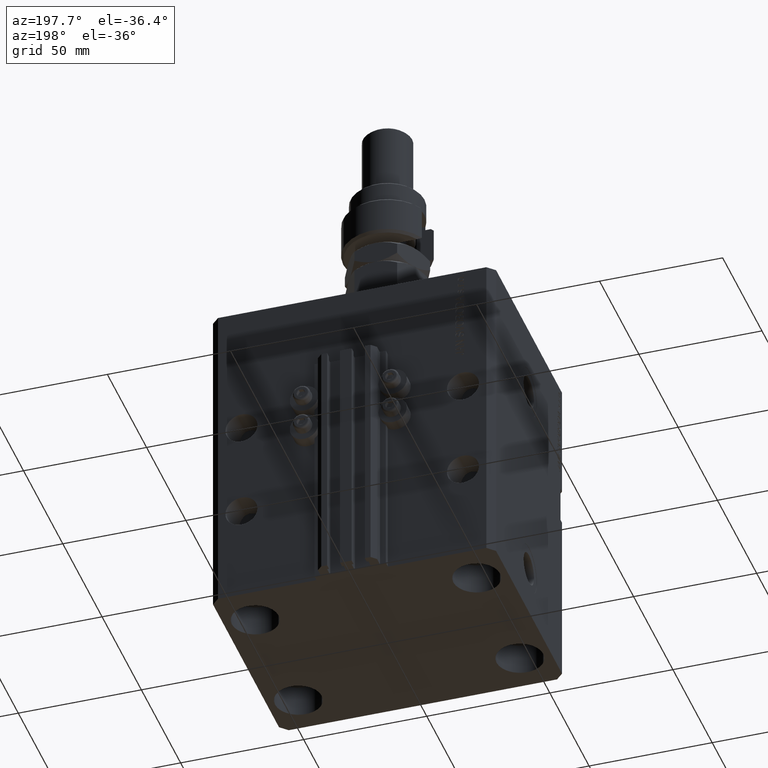
[diagram: clean part render]
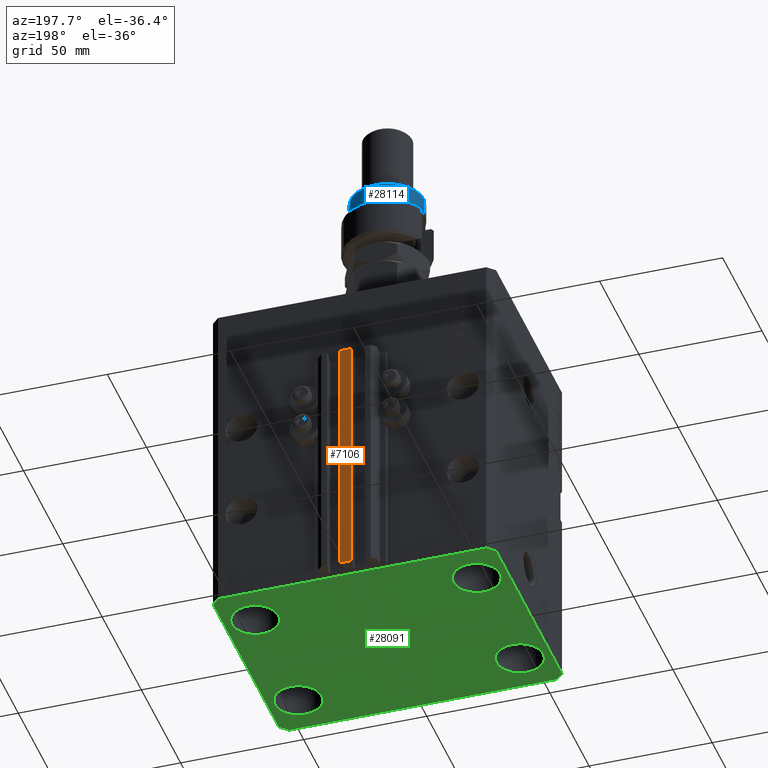
[diagram: same view with three faces highlighted in distinct colors, each labeled with its STEP entity id]
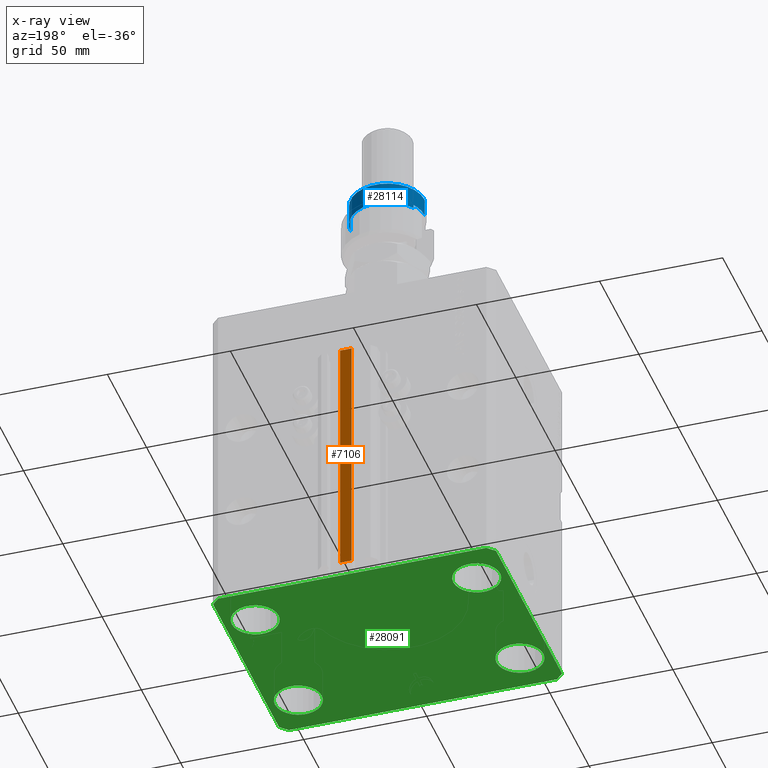
[diagram: x-ray of the same camera — body ghosted, the three highlighted faces saturated]
A machine part, auxiliary view with three faces highlighted in distinct colors.
The next image is the same camera in x-ray (body ghosted, the three faces saturated) — at least one of them is partly hidden behind the body in this view.
Their STEP definitions:

[orange] entity #7106 — the highlighted planar face has unit normal (0, -1, 0).
#219 = LINE ( 'NONE', #25465, #16224 ) ;
#580 = CARTESIAN_POINT ( 'NONE',  ( 2.349999999999999645, 53.00000000000000000, -135.0000000000000000 ) ) ;
#1172 = LINE ( 'NONE', #36538, #31706 ) ;
#2548 = ORIENTED_EDGE ( 'NONE', *, *, #48934, .T. ) ;
#2586 = EDGE_LOOP ( 'NONE', ( #14783, #13304, #35759, #2548 ) ) ;
#5091 = VERTEX_POINT ( 'NONE', #42704 ) ;
#6332 = LINE ( 'NONE', #14289, #6761 ) ;
#6761 = VECTOR ( 'NONE', #30775, 1000.000000000000000 ) ;
#7106 = ADVANCED_FACE ( 'NONE', ( #35295 ), #51248, .F. ) ;
#8103 = DIRECTION ( 'NONE',  ( 0.000000000000000000, 0.000000000000000000, 1.000000000000000000 ) ) ;
#9465 = CARTESIAN_POINT ( 'NONE',  ( -2.350000000000003642, 53.00000000000000000, -135.0000000000000000 ) ) ;
#12321 = AXIS2_PLACEMENT_3D ( 'NONE', #15079, #26799, #51768 ) ;
#13304 = ORIENTED_EDGE ( 'NONE', *, *, #29419, .F. ) ;
#14041 = CARTESIAN_POINT ( 'NONE',  ( 2.349999999999999645, 53.00000000000000000, -135.0000000000000000 ) ) ;
#14110 = VECTOR ( 'NONE', #32990, 1000.000000000000000 ) ;
#14289 = CARTESIAN_POINT ( 'NONE',  ( -2.350000000000003642, 53.00000000000000000, -33.00000000000000000 ) ) ;
#14783 = ORIENTED_EDGE ( 'NONE', *, *, #36640, .T. ) ;
#15079 = CARTESIAN_POINT ( 'NONE',  ( -2.350000000000003642, 53.00000000000000000, -135.0000000000000000 ) ) ;
#16224 = VECTOR ( 'NONE', #25216, 1000.000000000000000 ) ;
#19665 = VERTEX_POINT ( 'NONE', #33818 ) ;
#25216 = DIRECTION ( 'NONE',  ( 1.000000000000000000, 0.000000000000000000, 0.000000000000000000 ) ) ;
#25465 = CARTESIAN_POINT ( 'NONE',  ( -2.350000000000003642, 53.00000000000000000, -135.0000000000000000 ) ) ;
#26799 = DIRECTION ( 'NONE',  ( 0.000000000000000000, -1.000000000000000000, 0.000000000000000000 ) ) ;
#29419 = EDGE_CURVE ( 'NONE', #43171, #5091, #48961, .T. ) ;
#30775 = DIRECTION ( 'NONE',  ( 1.000000000000000000, 0.000000000000000000, 0.000000000000000000 ) ) ;
#31706 = VECTOR ( 'NONE', #8103, 1000.000000000000000 ) ;
#32990 = DIRECTION ( 'NONE',  ( 0.000000000000000000, 0.000000000000000000, 1.000000000000000000 ) ) ;
#33818 = CARTESIAN_POINT ( 'NONE',  ( -2.350000000000003642, 53.00000000000000000, -33.00000000000000000 ) ) ;
#35295 = FACE_OUTER_BOUND ( 'NONE', #2586, .T. ) ;
#35759 = ORIENTED_EDGE ( 'NONE', *, *, #41100, .F. ) ;
#36538 = CARTESIAN_POINT ( 'NONE',  ( -2.350000000000003642, 53.00000000000000000, -135.0000000000000000 ) ) ;
#36640 = EDGE_CURVE ( 'NONE', #19665, #5091, #6332, .T. ) ;
#41100 = EDGE_CURVE ( 'NONE', #48641, #43171, #219, .T. ) ;
#42704 = CARTESIAN_POINT ( 'NONE',  ( 2.349999999999999645, 53.00000000000000000, -33.00000000000000000 ) ) ;
#43171 = VERTEX_POINT ( 'NONE', #14041 ) ;
#48641 = VERTEX_POINT ( 'NONE', #9465 ) ;
#48934 = EDGE_CURVE ( 'NONE', #48641, #19665, #1172, .T. ) ;
#48961 = LINE ( 'NONE', #580, #14110 ) ;
#51248 = PLANE ( 'NONE',  #12321 ) ;
#51768 = DIRECTION ( 'NONE',  ( 0.000000000000000000, -0.000000000000000000, -1.000000000000000000 ) ) ;

[blue] entity #28114 — the highlighted cylindrical surface (partial cylindrical patch) has radius 15 mm, axis along (-0, -0, -1).
#916 = VERTEX_POINT ( 'NONE', #33030 ) ;
#1473 = DIRECTION ( 'NONE',  ( 0.000000000000000000, 0.000000000000000000, 1.000000000000000000 ) ) ;
#2150 = VERTEX_POINT ( 'NONE', #18859 ) ;
#2334 = ORIENTED_EDGE ( 'NONE', *, *, #40408, .T. ) ;
#3629 = LINE ( 'NONE', #7617, #25657 ) ;
#4651 = CIRCLE ( 'NONE', #24173, 15.00000000000000000 ) ;
#5362 = EDGE_CURVE ( 'NONE', #2150, #916, #4651, .T. ) ;
#5452 = CARTESIAN_POINT ( 'NONE',  ( -12.99038105676658006, 7.500000000000000000, 26.00000000000000355 ) ) ;
#5552 = AXIS2_PLACEMENT_3D ( 'NONE', #27043, #23043, #39778 ) ;
#5720 = LINE ( 'NONE', #5452, #27190 ) ;
#5881 = CARTESIAN_POINT ( 'NONE',  ( -15.00000000000000000, 0.000000000000000000, 26.00000000000000355 ) ) ;
#7617 = CARTESIAN_POINT ( 'NONE',  ( 15.00000000000000000, 1.836970198721029589E-15, 26.00000000000000355 ) ) ;
#13112 = ORIENTED_EDGE ( 'NONE', *, *, #44208, .F. ) ;
#13247 = AXIS2_PLACEMENT_3D ( 'NONE', #33436, #26002, #37167 ) ;
#13989 = CARTESIAN_POINT ( 'NONE',  ( 15.00000000000000000, 1.836970198721029589E-15, 16.00000000000000000 ) ) ;
#14692 = CARTESIAN_POINT ( 'NONE',  ( 15.00000000000000000, 1.836970198721029589E-15, 24.99999999999997868 ) ) ;
#14935 = DIRECTION ( 'NONE',  ( -1.000000000000000000, 0.000000000000000000, 0.000000000000000000 ) ) ;
#16587 = CIRCLE ( 'NONE', #5552, 15.00000000000000000 ) ;
#17590 = DIRECTION ( 'NONE',  ( 1.000000000000000000, 0.000000000000000000, 0.000000000000000000 ) ) ;
#18501 = ORIENTED_EDGE ( 'NONE', *, *, #5362, .F. ) ;
#18859 = CARTESIAN_POINT ( 'NONE',  ( -15.00000000000000000, 0.000000000000000000, 17.50000000000000000 ) ) ;
#20446 = AXIS2_PLACEMENT_3D ( 'NONE', #41001, #29559, #17590 ) ;
#20959 = FACE_OUTER_BOUND ( 'NONE', #22270, .T. ) ;
#21746 = CYLINDRICAL_SURFACE ( 'NONE', #13247, 15.00000000000000000 ) ;
#22270 = EDGE_LOOP ( 'NONE', ( #50840, #36575, #2334, #23119, #18501, #13112 ) ) ;
#23043 = DIRECTION ( 'NONE',  ( 0.000000000000000000, 0.000000000000000000, -1.000000000000000000 ) ) ;
#23119 = ORIENTED_EDGE ( 'NONE', *, *, #36951, .T. ) ;
#23836 = DIRECTION ( 'NONE',  ( -0.000000000000000000, -0.000000000000000000, -1.000000000000000000 ) ) ;
#23969 = EDGE_CURVE ( 'NONE', #44207, #49091, #16587, .T. ) ;
#24173 = AXIS2_PLACEMENT_3D ( 'NONE', #35143, #51362, #14935 ) ;
#25657 = VECTOR ( 'NONE', #23836, 1000.000000000000000 ) ;
#26002 = DIRECTION ( 'NONE',  ( -0.000000000000000000, -0.000000000000000000, -1.000000000000000000 ) ) ;
#27043 = CARTESIAN_POINT ( 'NONE',  ( 0.000000000000000000, 0.000000000000000000, 24.99999999999997868 ) ) ;
#27190 = VECTOR ( 'NONE', #1473, 1000.000000000000000 ) ;
#28114 = ADVANCED_FACE ( 'NONE', ( #20959 ), #21746, .T. ) ;
#29559 = DIRECTION ( 'NONE',  ( 0.000000000000000000, 0.000000000000000000, 1.000000000000000000 ) ) ;
#33030 = CARTESIAN_POINT ( 'NONE',  ( -12.99038105676658006, 7.500000000000000000, 17.50000000000000000 ) ) ;
#33436 = CARTESIAN_POINT ( 'NONE',  ( 0.000000000000000000, 0.000000000000000000, 26.00000000000000355 ) ) ;
#35116 = LINE ( 'NONE', #5881, #42675 ) ;
#35143 = CARTESIAN_POINT ( 'NONE',  ( 0.000000000000000000, 0.000000000000000000, 17.50000000000000000 ) ) ;
#35383 = CARTESIAN_POINT ( 'NONE',  ( -12.99038105676658006, 7.500000000000000000, 16.00000000000000000 ) ) ;
#35391 = DIRECTION ( 'NONE',  ( -0.000000000000000000, -0.000000000000000000, -1.000000000000000000 ) ) ;
#36575 = ORIENTED_EDGE ( 'NONE', *, *, #42228, .T. ) ;
#36951 = EDGE_CURVE ( 'NONE', #49360, #916, #5720, .T. ) ;
#37167 = DIRECTION ( 'NONE',  ( -1.000000000000000000, 0.000000000000000000, 0.000000000000000000 ) ) ;
#38575 = CARTESIAN_POINT ( 'NONE',  ( -15.00000000000000000, 0.000000000000000000, 24.99999999999997868 ) ) ;
#39778 = DIRECTION ( 'NONE',  ( 1.000000000000000000, 0.000000000000000000, 0.000000000000000000 ) ) ;
#40408 = EDGE_CURVE ( 'NONE', #51997, #49360, #48500, .T. ) ;
#41001 = CARTESIAN_POINT ( 'NONE',  ( 0.000000000000000000, 0.000000000000000000, 16.00000000000000000 ) ) ;
#42228 = EDGE_CURVE ( 'NONE', #49091, #51997, #3629, .T. ) ;
#42675 = VECTOR ( 'NONE', #35391, 1000.000000000000000 ) ;
#44207 = VERTEX_POINT ( 'NONE', #38575 ) ;
#44208 = EDGE_CURVE ( 'NONE', #44207, #2150, #35116, .T. ) ;
#48500 = CIRCLE ( 'NONE', #20446, 15.00000000000000000 ) ;
#49091 = VERTEX_POINT ( 'NONE', #14692 ) ;
#49360 = VERTEX_POINT ( 'NONE', #35383 ) ;
#50840 = ORIENTED_EDGE ( 'NONE', *, *, #23969, .T. ) ;
#51362 = DIRECTION ( 'NONE',  ( 0.000000000000000000, 0.000000000000000000, -1.000000000000000000 ) ) ;
#51997 = VERTEX_POINT ( 'NONE', #13989 ) ;

[green] entity #28091 — the highlighted planar face has unit normal (0, 0, 1).
#174 = DIRECTION ( 'NONE',  ( 1.000000000000000000, 0.000000000000000000, 0.000000000000000000 ) ) ;
#346 = DIRECTION ( 'NONE',  ( -1.000000000000000000, -2.546383084002639322E-16, 0.000000000000000000 ) ) ;
#407 = CIRCLE ( 'NONE', #36072, 9.500000000000001776 ) ;
#496 = DIRECTION ( 'NONE',  ( 0.000000000000000000, 0.000000000000000000, 1.000000000000000000 ) ) ;
#688 = CARTESIAN_POINT ( 'NONE',  ( -54.50000000000000711, -45.00000000000000000, -135.0000000000000000 ) ) ;
#920 = CARTESIAN_POINT ( 'NONE',  ( 57.50000000000000711, -41.99999999999998579, -135.0000000000000000 ) ) ;
#1358 = CIRCLE ( 'NONE', #52285, 9.500000000000001776 ) ;
#1731 = ORIENTED_EDGE ( 'NONE', *, *, #36268, .T. ) ;
#1794 = DIRECTION ( 'NONE',  ( -0.000000000000000000, -0.000000000000000000, 1.000000000000000000 ) ) ;
#1864 = CARTESIAN_POINT ( 'NONE',  ( 54.50000000000000000, 27.50000000000001776, -135.0000000000000000 ) ) ;
#1941 = VERTEX_POINT ( 'NONE', #47966 ) ;
#2128 = ORIENTED_EDGE ( 'NONE', *, *, #36292, .T. ) ;
#2207 = CARTESIAN_POINT ( 'NONE',  ( -54.49999999999999289, 45.00000000000000000, -135.0000000000000000 ) ) ;
#2933 = ORIENTED_EDGE ( 'NONE', *, *, #26800, .F. ) ;
#3541 = VECTOR ( 'NONE', #31329, 1000.000000000000000 ) ;
#3954 = LINE ( 'NONE', #20171, #34316 ) ;
#4024 = CARTESIAN_POINT ( 'NONE',  ( -54.49999999999999289, 45.00000000000000000, -135.0000000000000000 ) ) ;
#4476 = FACE_OUTER_BOUND ( 'NONE', #7247, .T. ) ;
#4759 = EDGE_CURVE ( 'NONE', #27104, #7110, #3954, .T. ) ;
#4864 = CARTESIAN_POINT ( 'NONE',  ( 54.50000000000058975, 45.00000000000002842, -135.0000000000000000 ) ) ;
#5534 = VERTEX_POINT ( 'NONE', #1864 ) ;
#5859 = DIRECTION ( 'NONE',  ( 1.000000000000000000, 0.000000000000000000, 0.000000000000000000 ) ) ;
#5919 = VERTEX_POINT ( 'NONE', #43516 ) ;
#6804 = EDGE_CURVE ( 'NONE', #17547, #48636, #28448, .T. ) ;
#6873 = CARTESIAN_POINT ( 'NONE',  ( -54.50000000000000711, -45.00000000000000000, -135.0000000000000000 ) ) ;
#7110 = VERTEX_POINT ( 'NONE', #27062 ) ;
#7247 = EDGE_LOOP ( 'NONE', ( #47114, #2933, #28636, #12815, #20712, #32464, #43536, #51565 ) ) ;
#7254 = EDGE_CURVE ( 'NONE', #27884, #14934, #1358, .T. ) ;
#7682 = CARTESIAN_POINT ( 'NONE',  ( -45.00000000000000000, -27.49999999999999645, -135.0000000000000000 ) ) ;
#8462 = AXIS2_PLACEMENT_3D ( 'NONE', #38024, #13044, #5859 ) ;
#8721 = PLANE ( 'NONE',  #35356 ) ;
#10030 = DIRECTION ( 'NONE',  ( 1.000000000000000000, 0.000000000000000000, 0.000000000000000000 ) ) ;
#10295 = DIRECTION ( 'NONE',  ( 1.000000000000000000, 0.000000000000000000, 0.000000000000000000 ) ) ;
#10540 = DIRECTION ( 'NONE',  ( 1.000000000000000000, 0.000000000000000000, 0.000000000000000000 ) ) ;
#10638 = VECTOR ( 'NONE', #16482, 999.9999999999998863 ) ;
#10909 = EDGE_CURVE ( 'NONE', #16713, #14398, #48994, .T. ) ;
#12000 = CARTESIAN_POINT ( 'NONE',  ( -57.49999999999998579, 42.00000000000000711, -135.0000000000000000 ) ) ;
#12191 = FACE_BOUND ( 'NONE', #50145, .T. ) ;
#12366 = LINE ( 'NONE', #920, #30781 ) ;
#12509 = CARTESIAN_POINT ( 'NONE',  ( 57.50000000000055422, 41.99999999999997868, -135.0000000000000000 ) ) ;
#12815 = ORIENTED_EDGE ( 'NONE', *, *, #4759, .F. ) ;
#12950 = DIRECTION ( 'NONE',  ( 0.7071067811865483499, 0.7071067811865466846, 0.000000000000000000 ) ) ;
#13044 = DIRECTION ( 'NONE',  ( -0.000000000000000000, -0.000000000000000000, 1.000000000000000000 ) ) ;
#13182 = AXIS2_PLACEMENT_3D ( 'NONE', #7682, #31364, #39603 ) ;
#13393 = DIRECTION ( 'NONE',  ( 6.443258625056715108E-15, 1.000000000000000000, 0.000000000000000000 ) ) ;
#13710 = AXIS2_PLACEMENT_3D ( 'NONE', #46183, #1794, #10295 ) ;
#13876 = LINE ( 'NONE', #2207, #15823 ) ;
#14042 = CARTESIAN_POINT ( 'NONE',  ( 54.50000000000000000, -27.49999999999999645, -135.0000000000000000 ) ) ;
#14086 = ORIENTED_EDGE ( 'NONE', *, *, #7254, .T. ) ;
#14398 = VERTEX_POINT ( 'NONE', #6873 ) ;
#14934 = VERTEX_POINT ( 'NONE', #14042 ) ;
#15504 = EDGE_CURVE ( 'NONE', #38219, #16713, #22036, .T. ) ;
#15823 = VECTOR ( 'NONE', #34621, 1000.000000000000000 ) ;
#15897 = CARTESIAN_POINT ( 'NONE',  ( 54.50000000000000711, -44.99999999999998579, -135.0000000000000000 ) ) ;
#16482 = DIRECTION ( 'NONE',  ( -0.7071067811865376918, 0.7071067811865574537, 0.000000000000000000 ) ) ;
#16713 = VERTEX_POINT ( 'NONE', #35268 ) ;
#17547 = VERTEX_POINT ( 'NONE', #43745 ) ;
#17636 = EDGE_CURVE ( 'NONE', #7110, #26245, #12366, .T. ) ;
#17972 = DIRECTION ( 'NONE',  ( 1.000000000000000000, 0.000000000000000000, 0.000000000000000000 ) ) ;
#18038 = CARTESIAN_POINT ( 'NONE',  ( -57.49999999999998579, 42.00000000000000711, -135.0000000000000000 ) ) ;
#18888 = CARTESIAN_POINT ( 'NONE',  ( -35.50000000000000000, 27.50000000000000355, -135.0000000000000000 ) ) ;
#19467 = EDGE_LOOP ( 'NONE', ( #2128, #38288 ) ) ;
#19979 = CIRCLE ( 'NONE', #44586, 9.500000000000001776 ) ;
#20171 = CARTESIAN_POINT ( 'NONE',  ( 54.50000000000000711, -44.99999999999998579, -135.0000000000000000 ) ) ;
#20375 = ORIENTED_EDGE ( 'NONE', *, *, #52050, .T. ) ;
#20712 = ORIENTED_EDGE ( 'NONE', *, *, #47726, .F. ) ;
#21686 = AXIS2_PLACEMENT_3D ( 'NONE', #34722, #26756, #17972 ) ;
#22036 = LINE ( 'NONE', #18038, #3541 ) ;
#23795 = EDGE_CURVE ( 'NONE', #49378, #1941, #19979, .T. ) ;
#24512 = DIRECTION ( 'NONE',  ( -0.000000000000000000, -0.000000000000000000, 1.000000000000000000 ) ) ;
#24600 = CIRCLE ( 'NONE', #8462, 9.500000000000001776 ) ;
#24685 = FACE_BOUND ( 'NONE', #19467, .T. ) ;
#24797 = DIRECTION ( 'NONE',  ( 0.7071067811865491270, -0.7071067811865459074, 0.000000000000000000 ) ) ;
#24955 = DIRECTION ( 'NONE',  ( 1.000000000000000000, 0.000000000000000000, -0.000000000000000000 ) ) ;
#25536 = CARTESIAN_POINT ( 'NONE',  ( 35.50000000000000000, -27.49999999999999645, -135.0000000000000000 ) ) ;
#26122 = EDGE_CURVE ( 'NONE', #48636, #17547, #28484, .T. ) ;
#26245 = VERTEX_POINT ( 'NONE', #36813 ) ;
#26248 = DIRECTION ( 'NONE',  ( -0.000000000000000000, -0.000000000000000000, 1.000000000000000000 ) ) ;
#26498 = CARTESIAN_POINT ( 'NONE',  ( 45.00000000000000000, 27.50000000000001776, -135.0000000000000000 ) ) ;
#26756 = DIRECTION ( 'NONE',  ( -0.000000000000000000, -0.000000000000000000, 1.000000000000000000 ) ) ;
#26800 = EDGE_CURVE ( 'NONE', #26245, #37859, #36689, .T. ) ;
#27062 = CARTESIAN_POINT ( 'NONE',  ( 57.50000000000000711, -41.99999999999998579, -135.0000000000000000 ) ) ;
#27104 = VERTEX_POINT ( 'NONE', #15897 ) ;
#27379 = ORIENTED_EDGE ( 'NONE', *, *, #42080, .T. ) ;
#27884 = VERTEX_POINT ( 'NONE', #25536 ) ;
#28091 = ADVANCED_FACE ( 'NONE', ( #12191, #44093, #28413, #24685, #4476 ), #8721, .F. ) ;
#28413 = FACE_BOUND ( 'NONE', #47567, .T. ) ;
#28448 = CIRCLE ( 'NONE', #13182, 9.500000000000001776 ) ;
#28484 = CIRCLE ( 'NONE', #21686, 9.500000000000001776 ) ;
#28636 = ORIENTED_EDGE ( 'NONE', *, *, #17636, .F. ) ;
#29002 = DIRECTION ( 'NONE',  ( 1.000000000000000000, 0.000000000000000000, 0.000000000000000000 ) ) ;
#29077 = EDGE_CURVE ( 'NONE', #37412, #38219, #13876, .T. ) ;
#29670 = CARTESIAN_POINT ( 'NONE',  ( -35.50000000000000000, -27.49999999999999645, -135.0000000000000000 ) ) ;
#30781 = VECTOR ( 'NONE', #13393, 1000.000000000000000 ) ;
#31329 = DIRECTION ( 'NONE',  ( -2.478176394252581141E-16, -1.000000000000000000, 0.000000000000000000 ) ) ;
#31364 = DIRECTION ( 'NONE',  ( -0.000000000000000000, -0.000000000000000000, 1.000000000000000000 ) ) ;
#32301 = EDGE_CURVE ( 'NONE', #37859, #37412, #36761, .T. ) ;
#32464 = ORIENTED_EDGE ( 'NONE', *, *, #10909, .F. ) ;
#33097 = DIRECTION ( 'NONE',  ( 1.000000000000000000, 1.273191542001326317E-16, 0.000000000000000000 ) ) ;
#34316 = VECTOR ( 'NONE', #12950, 1000.000000000000000 ) ;
#34621 = DIRECTION ( 'NONE',  ( -0.7071067811865483499, -0.7071067811865466846, 0.000000000000000000 ) ) ;
#34722 = CARTESIAN_POINT ( 'NONE',  ( -45.00000000000000000, -27.49999999999999645, -135.0000000000000000 ) ) ;
#35268 = CARTESIAN_POINT ( 'NONE',  ( -57.50000000000000711, -42.00000000000000711, -135.0000000000000000 ) ) ;
#35356 = AXIS2_PLACEMENT_3D ( 'NONE', #36901, #496, #24955 ) ;
#36072 = AXIS2_PLACEMENT_3D ( 'NONE', #26498, #43491, #10540 ) ;
#36268 = EDGE_CURVE ( 'NONE', #14934, #27884, #47521, .T. ) ;
#36292 = EDGE_CURVE ( 'NONE', #1941, #49378, #24600, .T. ) ;
#36689 = LINE ( 'NONE', #12509, #10638 ) ;
#36761 = LINE ( 'NONE', #4864, #43948 ) ;
#36813 = CARTESIAN_POINT ( 'NONE',  ( 57.50000000000055422, 41.99999999999997868, -135.0000000000000000 ) ) ;
#36901 = CARTESIAN_POINT ( 'NONE',  ( 0.000000000000000000, 0.000000000000000000, -135.0000000000000000 ) ) ;
#37098 = LINE ( 'NONE', #688, #45338 ) ;
#37412 = VERTEX_POINT ( 'NONE', #4024 ) ;
#37859 = VERTEX_POINT ( 'NONE', #45666 ) ;
#38024 = CARTESIAN_POINT ( 'NONE',  ( -45.00000000000000000, 27.50000000000000355, -135.0000000000000000 ) ) ;
#38219 = VERTEX_POINT ( 'NONE', #12000 ) ;
#38288 = ORIENTED_EDGE ( 'NONE', *, *, #23795, .T. ) ;
#39603 = DIRECTION ( 'NONE',  ( 1.000000000000000000, 0.000000000000000000, 0.000000000000000000 ) ) ;
#40097 = ORIENTED_EDGE ( 'NONE', *, *, #26122, .T. ) ;
#40349 = ORIENTED_EDGE ( 'NONE', *, *, #6804, .T. ) ;
#42080 = EDGE_CURVE ( 'NONE', #5534, #5919, #46006, .T. ) ;
#42194 = CARTESIAN_POINT ( 'NONE',  ( -45.00000000000000000, 27.50000000000000355, -135.0000000000000000 ) ) ;
#43134 = EDGE_LOOP ( 'NONE', ( #14086, #1731 ) ) ;
#43491 = DIRECTION ( 'NONE',  ( -0.000000000000000000, -0.000000000000000000, 1.000000000000000000 ) ) ;
#43516 = CARTESIAN_POINT ( 'NONE',  ( 35.50000000000000000, 27.50000000000001776, -135.0000000000000000 ) ) ;
#43536 = ORIENTED_EDGE ( 'NONE', *, *, #15504, .F. ) ;
#43745 = CARTESIAN_POINT ( 'NONE',  ( -54.50000000000000000, -27.49999999999999645, -135.0000000000000000 ) ) ;
#43948 = VECTOR ( 'NONE', #346, 1000.000000000000000 ) ;
#44093 = FACE_BOUND ( 'NONE', #43134, .T. ) ;
#44586 = AXIS2_PLACEMENT_3D ( 'NONE', #42194, #26248, #10030 ) ;
#44701 = CARTESIAN_POINT ( 'NONE',  ( 45.00000000000000000, -27.49999999999999645, -135.0000000000000000 ) ) ;
#44829 = CARTESIAN_POINT ( 'NONE',  ( 45.00000000000000000, -27.49999999999999645, -135.0000000000000000 ) ) ;
#44980 = CARTESIAN_POINT ( 'NONE',  ( -57.50000000000000711, -42.00000000000000711, -135.0000000000000000 ) ) ;
#45338 = VECTOR ( 'NONE', #33097, 1000.000000000000000 ) ;
#45666 = CARTESIAN_POINT ( 'NONE',  ( 54.50000000000058975, 45.00000000000002842, -135.0000000000000000 ) ) ;
#46006 = CIRCLE ( 'NONE', #13710, 9.500000000000001776 ) ;
#46183 = CARTESIAN_POINT ( 'NONE',  ( 45.00000000000000000, 27.50000000000001776, -135.0000000000000000 ) ) ;
#47114 = ORIENTED_EDGE ( 'NONE', *, *, #32301, .F. ) ;
#47521 = CIRCLE ( 'NONE', #50934, 9.500000000000001776 ) ;
#47567 = EDGE_LOOP ( 'NONE', ( #20375, #27379 ) ) ;
#47726 = EDGE_CURVE ( 'NONE', #14398, #27104, #37098, .T. ) ;
#47966 = CARTESIAN_POINT ( 'NONE',  ( -54.50000000000000000, 27.50000000000000355, -135.0000000000000000 ) ) ;
#48636 = VERTEX_POINT ( 'NONE', #29670 ) ;
#48994 = LINE ( 'NONE', #44980, #50565 ) ;
#49378 = VERTEX_POINT ( 'NONE', #18888 ) ;
#50145 = EDGE_LOOP ( 'NONE', ( #40349, #40097 ) ) ;
#50565 = VECTOR ( 'NONE', #24797, 1000.000000000000114 ) ;
#50934 = AXIS2_PLACEMENT_3D ( 'NONE', #44701, #24512, #29002 ) ;
#51565 = ORIENTED_EDGE ( 'NONE', *, *, #29077, .F. ) ;
#52050 = EDGE_CURVE ( 'NONE', #5919, #5534, #407, .T. ) ;
#52285 = AXIS2_PLACEMENT_3D ( 'NONE', #44829, #52550, #174 ) ;
#52550 = DIRECTION ( 'NONE',  ( -0.000000000000000000, -0.000000000000000000, 1.000000000000000000 ) ) ;